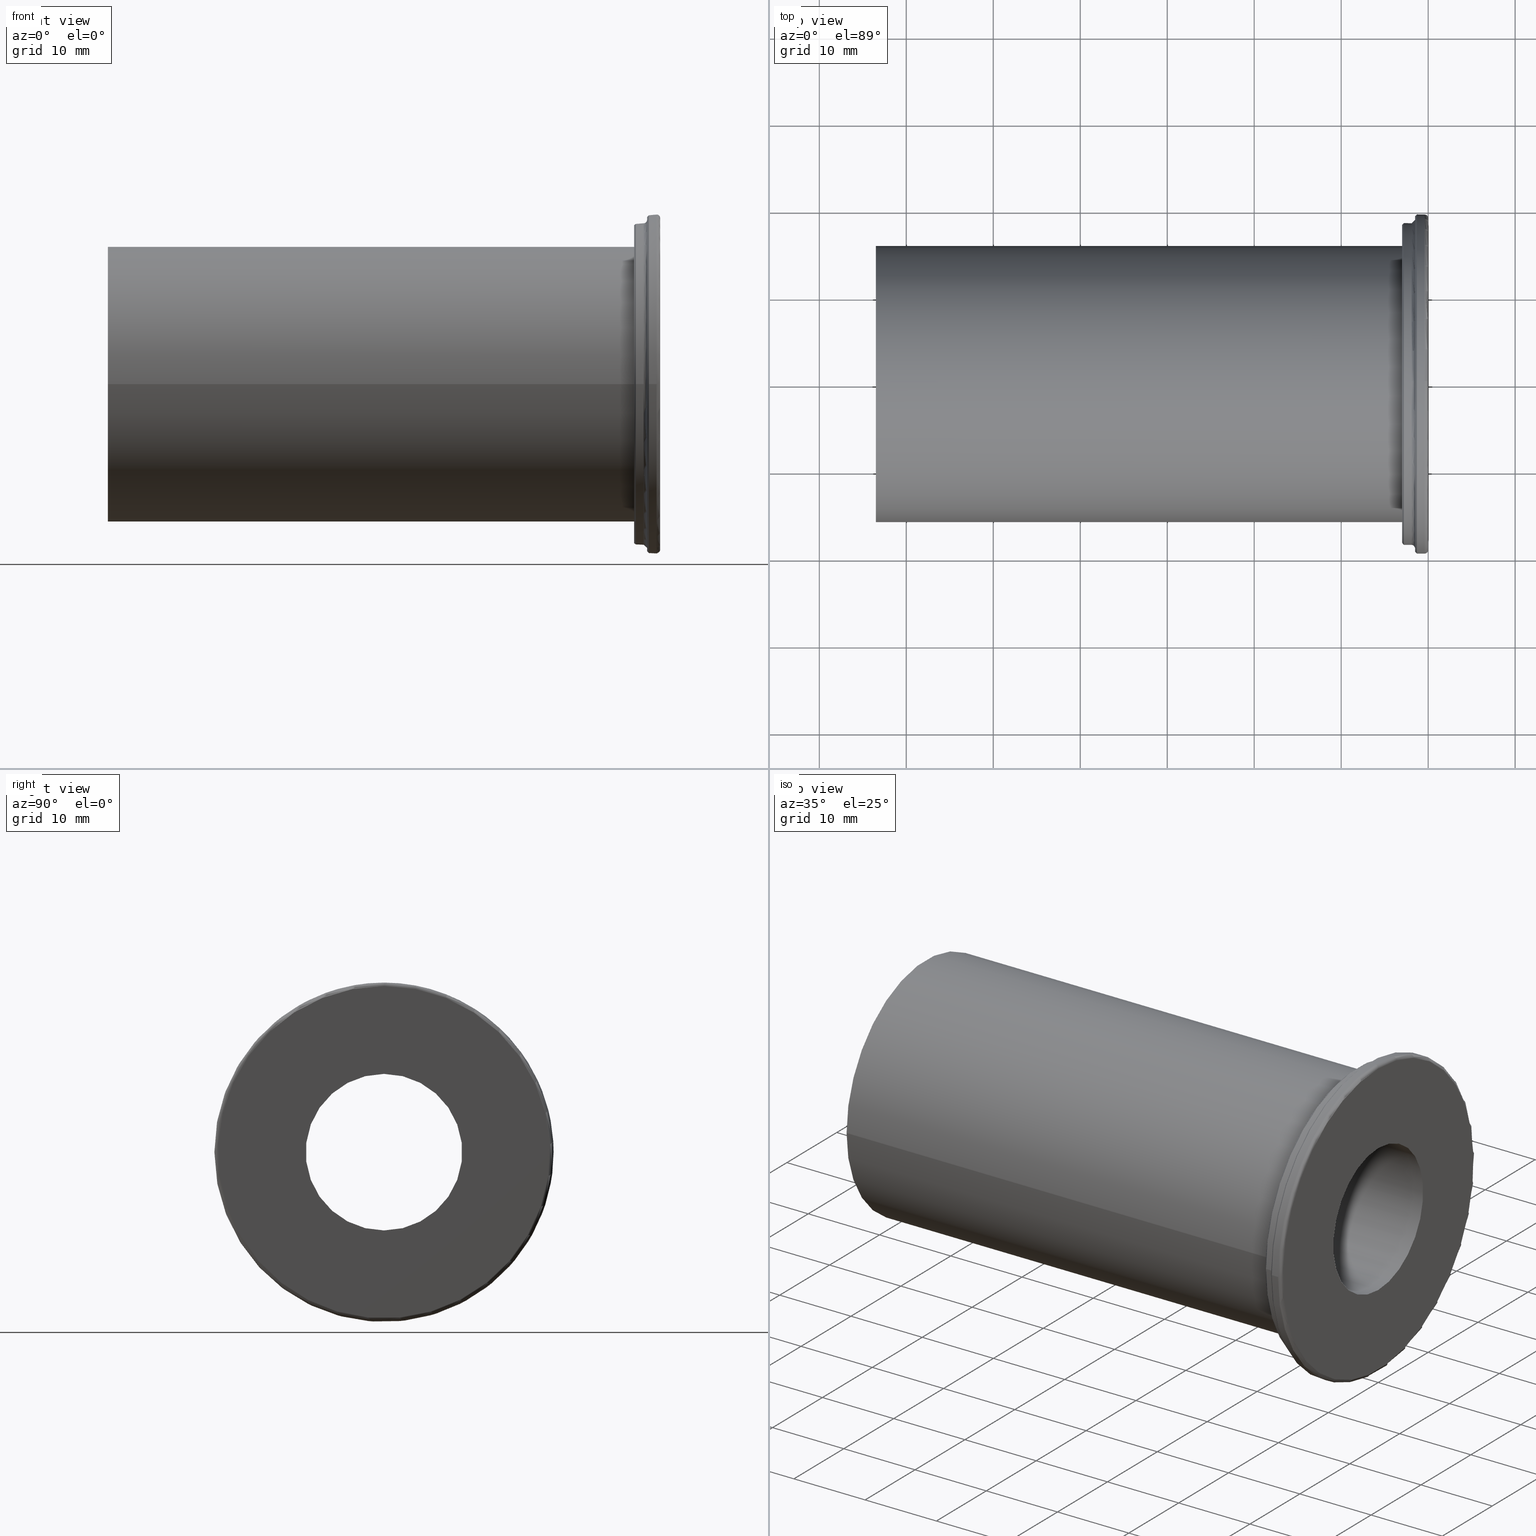
[diagram: canonical four-view strip — front | top / right | iso, engineering-drawing reading convention]
A machine part, canonical four-view strip (front | top / right | iso — engineering-drawing reading convention). The complete STEP part file that produces these views, byte-faithful:
ISO-10303-21;
HEADER;
/* Generated by software containing ST-Developer
 * from STEP Tools, Inc. (www.steptools.com) 
 */

FILE_DESCRIPTION(
/* description */ ('',
'CAx-IF Rec.Pracs.---Representation and Presentation of Product Manufa
cturing Information (PMI)---4.0---2014-10-13'),
/* implementation_level */ '2;1');

FILE_NAME(
/* name */ '103218.stp',
/* time_stamp */ '2025-05-12T15:29:28+09:00',
/* author */ ('eos'),
/* organization */ (''),
/* preprocessor_version */ 'ST-DEVELOPER v20',
/* originating_system */ 'Autodesk Inventor 2025',
/* authorisation */ '');

FILE_SCHEMA (('AP242_MANAGED_MODEL_BASED_3D_ENGINEERING_MIM_LF { 1 0 10303 442 1 1 4 }'));
ENDSEC;

DATA;
#10=CONSTRUCTIVE_GEOMETRY_REPRESENTATION_RELATIONSHIP('CGRR','None',#649,
#11);
#11=CONSTRUCTIVE_GEOMETRY_REPRESENTATION('Supplemental geometry',(#45,#46,
#47,#48),#641);
#12=MECHANICAL_DESIGN_AND_DRAUGHTING_RELATIONSHIP('\X2\B4F1AC01D22CC601\X0\',
'',#27,#28);
#13=MECHANICAL_DESIGN_AND_DRAUGHTING_RELATIONSHIP('\X2\C815BA74\X0\','',
#29,#28);
#14=MECHANICAL_DESIGN_AND_DRAUGHTING_RELATIONSHIP('\X2\D3C9BA74\X0\','',
#30,#28);
#15=MECHANICAL_DESIGN_AND_DRAUGHTING_RELATIONSHIP('\X2\C6B0CE21BA74\X0\',
'',#31,#28);
#16=MAPPED_ITEM('',#21,#396);
#17=MAPPED_ITEM('',#22,#397);
#18=MAPPED_ITEM('',#23,#398);
#19=MAPPED_ITEM('',#24,#399);
#20=MAPPED_ITEM('',#25,#400);
#21=REPRESENTATION_MAP(#396,#26);
#22=REPRESENTATION_MAP(#397,#649);
#23=REPRESENTATION_MAP(#398,#26);
#24=REPRESENTATION_MAP(#399,#26);
#25=REPRESENTATION_MAP(#400,#26);
#26=ADVANCED_BREP_SHAPE_REPRESENTATION('\X2\B4F1AC01D22CC601\X0\',(#84),
#641);
#27=DRAUGHTING_MODEL('\X2\B4F1AC01D22CC601\X0\',(#16,#33),#641);
#28=DRAUGHTING_MODEL('',(#17,#397),#641);
#29=DRAUGHTING_MODEL('\X2\C815BA74\X0\',(#18,#34),#641);
#30=DRAUGHTING_MODEL('\X2\D3C9BA74\X0\',(#19,#35),#641);
#31=DRAUGHTING_MODEL('\X2\C6B0CE21BA74\X0\',(#20,#36),#641);
#32=MECHANICAL_DESIGN_GEOMETRIC_PRESENTATION_REPRESENTATION('',(#59,#60,
#61,#62,#63,#64,#65,#66,#67,#68,#69,#70,#71,#72,#73,#74,#75,#76,#77,#78,
#79,#80,#81,#82),#642);
#33=CAMERA_MODEL_D3('\X2\B4F1AC01D22CC601\X0\',#388,#37);
#34=CAMERA_MODEL_D3('\X2\C815BA74\X0\',#390,#38);
#35=CAMERA_MODEL_D3('\X2\D3C9BA74\X0\',#392,#39);
#36=CAMERA_MODEL_D3('\X2\C6B0CE21BA74\X0\',#394,#40);
#37=VIEW_VOLUME(.PARALLEL.,#624,16.9875424688562,0.,.F.,0.,.F.,.F.,#41);
#38=VIEW_VOLUME(.PARALLEL.,#627,117.693146607172,0.,.F.,0.,.F.,.F.,#42);
#39=VIEW_VOLUME(.PARALLEL.,#630,117.693146607172,0.,.F.,0.,.F.,.F.,#43);
#40=VIEW_VOLUME(.PARALLEL.,#633,117.693146607172,0.,.F.,0.,.F.,.F.,#44);
#41=PLANAR_BOX('view window',27.8110236220472,20.,#389);
#42=PLANAR_BOX('view window',27.8110236220472,20.,#391);
#43=PLANAR_BOX('view window',27.8110236220472,20.,#393);
#44=PLANAR_BOX('view window',27.8110236220472,20.,#395);
#45=GEOMETRIC_CURVE_SET('\X2\C2A4CF00CE58\X0\1',(#50,#51,#52,#53,#54,#55,
#56,#57,#58,#612));
#46=GEOMETRIC_CURVE_SET('\X2\C2A4CF00CE58\X0\5',(#178,#614,#615));
#47=GEOMETRIC_CURVE_SET('\X2\C2A4CF00CE58\X0\6',(#179,#617,#618));
#48=GEOMETRIC_CURVE_SET('\X2\C2A4CF00CE58\X0\7',(#180,#620,#621));
#49=INVISIBILITY((#60,#61,#62,#63,#64,#65,#66,#67,#68,#69,#70,#71,#72,#73,
#74,#75,#76,#77,#78,#79,#80,#81,#82));
#50=POLYLINE('',(#594,#595));
#51=POLYLINE('',(#596,#597));
#52=POLYLINE('',(#598,#599));
#53=POLYLINE('',(#600,#601));
#54=POLYLINE('',(#602,#603));
#55=POLYLINE('',(#604,#605));
#56=POLYLINE('',(#606,#607));
#57=POLYLINE('',(#608,#609));
#58=POLYLINE('',(#610,#611));
#59=STYLED_ITEM('',(#658),#84);
#60=STYLED_ITEM('',(#659),#50);
#61=STYLED_ITEM('',(#659),#51);
#62=STYLED_ITEM('',(#660),#52);
#63=STYLED_ITEM('',(#659),#53);
#64=STYLED_ITEM('',(#659),#54);
#65=STYLED_ITEM('',(#659),#55);
#66=STYLED_ITEM('',(#659),#56);
#67=STYLED_ITEM('',(#659),#57);
#68=STYLED_ITEM('',(#659),#58);
#69=STYLED_ITEM('',(#661),#612);
#70=STYLED_ITEM('',(#660),#178);
#71=STYLED_ITEM('',(#662),#614);
#72=STYLED_ITEM('',(#663),#615);
#73=STYLED_ITEM('',(#660),#179);
#74=STYLED_ITEM('',(#664),#617);
#75=STYLED_ITEM('',(#665),#618);
#76=STYLED_ITEM('',(#660),#180);
#77=STYLED_ITEM('',(#666),#620);
#78=STYLED_ITEM('',(#667),#621);
#79=STYLED_ITEM('',(#668),#45);
#80=STYLED_ITEM('',(#669),#46);
#81=STYLED_ITEM('',(#670),#47);
#82=STYLED_ITEM('',(#671),#48);
#83=STYLED_ITEM('',(#672),#17);
#84=MANIFOLD_SOLID_BREP('\X2\C194B9ACB4DC\X0\1',#323);
#85=TOROIDAL_SURFACE('',#376,19.1,0.4);
#86=TOROIDAL_SURFACE('',#380,18.9,0.4);
#87=FACE_BOUND('',#123,.T.);
#88=FACE_BOUND('',#127,.T.);
#89=FACE_BOUND('',#130,.T.);
#90=FACE_BOUND('',#133,.T.);
#91=PLANE('',#365);
#92=PLANE('',#374);
#93=PLANE('',#379);
#94=PLANE('',#382);
#95=CONICAL_SURFACE('',#350,6.25,0.785398163397448);
#96=CONICAL_SURFACE('',#354,6.5,0.785398163397448);
#97=CONICAL_SURFACE('',#358,19.4,0.785398163397448);
#98=CONICAL_SURFACE('',#367,18.4,0.785398163397448);
#99=FACE_OUTER_BOUND('',#115,.T.);
#100=FACE_OUTER_BOUND('',#116,.T.);
#101=FACE_OUTER_BOUND('',#117,.T.);
#102=FACE_OUTER_BOUND('',#118,.T.);
#103=FACE_OUTER_BOUND('',#119,.T.);
#104=FACE_OUTER_BOUND('',#120,.T.);
#105=FACE_OUTER_BOUND('',#121,.T.);
#106=FACE_OUTER_BOUND('',#122,.T.);
#107=FACE_OUTER_BOUND('',#124,.T.);
#108=FACE_OUTER_BOUND('',#125,.T.);
#109=FACE_OUTER_BOUND('',#126,.T.);
#110=FACE_OUTER_BOUND('',#128,.T.);
#111=FACE_OUTER_BOUND('',#129,.T.);
#112=FACE_OUTER_BOUND('',#131,.T.);
#113=FACE_OUTER_BOUND('',#132,.T.);
#114=FACE_OUTER_BOUND('',#134,.T.);
#115=EDGE_LOOP('',(#235,#236,#237,#238,#239));
#116=EDGE_LOOP('',(#240,#241,#242,#243,#244));
#117=EDGE_LOOP('',(#245,#246,#247,#248));
#118=EDGE_LOOP('',(#249,#250,#251,#252));
#119=EDGE_LOOP('',(#253,#254,#255,#256));
#120=EDGE_LOOP('',(#257,#258,#259,#260,#261));
#121=EDGE_LOOP('',(#262,#263,#264,#265,#266,#267));
#122=EDGE_LOOP('',(#268));
#123=EDGE_LOOP('',(#269));
#124=EDGE_LOOP('',(#270,#271,#272,#273,#274));
#125=EDGE_LOOP('',(#275,#276,#277,#278,#279,#280));
#126=EDGE_LOOP('',(#281));
#127=EDGE_LOOP('',(#282));
#128=EDGE_LOOP('',(#283,#284,#285,#286,#287));
#129=EDGE_LOOP('',(#288));
#130=EDGE_LOOP('',(#289));
#131=EDGE_LOOP('',(#290,#291,#292,#293,#294));
#132=EDGE_LOOP('',(#295));
#133=EDGE_LOOP('',(#296));
#134=EDGE_LOOP('',(#297,#298,#299,#300));
#135=LINE('',#528,#145);
#136=LINE('',#535,#146);
#137=LINE('',#539,#147);
#138=LINE('',#543,#148);
#139=LINE('',#547,#149);
#140=LINE('',#554,#150);
#141=LINE('',#560,#151);
#142=LINE('',#571,#152);
#143=LINE('',#577,#153);
#144=LINE('',#593,#154);
#145=VECTOR('',#407,9.);
#146=VECTOR('',#416,6.25);
#147=VECTOR('',#421,12.5);
#148=VECTOR('',#426,6.5);
#149=VECTOR('',#431,13.);
#150=VECTOR('',#438,19.4);
#151=VECTOR('',#445,19.5);
#152=VECTOR('',#458,18.4);
#153=VECTOR('',#465,18.5);
#154=VECTOR('',#490,15.875);
#155=CIRCLE('',#347,9.);
#156=CIRCLE('',#348,9.);
#157=CIRCLE('',#349,9.);
#158=CIRCLE('',#351,12.5);
#159=CIRCLE('',#353,12.5);
#160=CIRCLE('',#355,13.);
#161=CIRCLE('',#357,13.);
#162=CIRCLE('',#359,19.5);
#163=CIRCLE('',#360,19.5);
#164=CIRCLE('',#361,19.3);
#165=CIRCLE('',#363,19.5);
#166=CIRCLE('',#364,19.5);
#167=CIRCLE('',#366,18.9);
#168=CIRCLE('',#368,18.5);
#169=CIRCLE('',#369,18.5);
#170=CIRCLE('',#370,18.3);
#171=CIRCLE('',#372,18.5);
#172=CIRCLE('',#373,18.5);
#173=CIRCLE('',#375,15.875);
#174=CIRCLE('',#377,19.1);
#175=CIRCLE('',#378,0.4);
#176=CIRCLE('',#381,0.4);
#177=CIRCLE('',#383,15.875);
#178=CIRCLE('',#385,15.875);
#179=CIRCLE('',#386,13.);
#180=CIRCLE('',#387,19.1);
#181=VERTEX_POINT('',#525);
#182=VERTEX_POINT('',#527);
#183=VERTEX_POINT('',#529);
#184=VERTEX_POINT('',#533);
#185=VERTEX_POINT('',#537);
#186=VERTEX_POINT('',#541);
#187=VERTEX_POINT('',#545);
#188=VERTEX_POINT('',#549);
#189=VERTEX_POINT('',#550);
#190=VERTEX_POINT('',#553);
#191=VERTEX_POINT('',#557);
#192=VERTEX_POINT('',#558);
#193=VERTEX_POINT('',#563);
#194=VERTEX_POINT('',#566);
#195=VERTEX_POINT('',#567);
#196=VERTEX_POINT('',#570);
#197=VERTEX_POINT('',#574);
#198=VERTEX_POINT('',#575);
#199=VERTEX_POINT('',#580);
#200=VERTEX_POINT('',#583);
#201=VERTEX_POINT('',#590);
#202=EDGE_CURVE('',#181,#181,#155,.T.);
#203=EDGE_CURVE('',#181,#182,#135,.T.);
#204=EDGE_CURVE('',#183,#182,#156,.T.);
#205=EDGE_CURVE('',#182,#183,#157,.T.);
#206=EDGE_CURVE('',#184,#184,#158,.T.);
#207=EDGE_CURVE('',#184,#183,#136,.T.);
#208=EDGE_CURVE('',#185,#185,#159,.T.);
#209=EDGE_CURVE('',#185,#184,#137,.T.);
#210=EDGE_CURVE('',#186,#186,#160,.T.);
#211=EDGE_CURVE('',#186,#185,#138,.T.);
#212=EDGE_CURVE('',#187,#187,#161,.T.);
#213=EDGE_CURVE('',#187,#186,#139,.T.);
#214=EDGE_CURVE('',#188,#189,#162,.T.);
#215=EDGE_CURVE('',#189,#188,#163,.T.);
#216=EDGE_CURVE('',#188,#190,#140,.T.);
#217=EDGE_CURVE('',#190,#190,#164,.T.);
#218=EDGE_CURVE('',#191,#192,#165,.T.);
#219=EDGE_CURVE('',#191,#189,#141,.T.);
#220=EDGE_CURVE('',#192,#191,#166,.T.);
#221=EDGE_CURVE('',#193,#193,#167,.T.);
#222=EDGE_CURVE('',#194,#195,#168,.T.);
#223=EDGE_CURVE('',#195,#194,#169,.T.);
#224=EDGE_CURVE('',#194,#196,#142,.T.);
#225=EDGE_CURVE('',#196,#196,#170,.T.);
#226=EDGE_CURVE('',#197,#198,#171,.T.);
#227=EDGE_CURVE('',#197,#195,#143,.T.);
#228=EDGE_CURVE('',#198,#197,#172,.T.);
#229=EDGE_CURVE('',#199,#199,#173,.T.);
#230=EDGE_CURVE('',#200,#200,#174,.T.);
#231=EDGE_CURVE('',#200,#192,#175,.T.);
#232=EDGE_CURVE('',#198,#193,#176,.T.);
#233=EDGE_CURVE('',#201,#201,#177,.T.);
#234=EDGE_CURVE('',#199,#201,#144,.T.);
#235=ORIENTED_EDGE('',*,*,#202,.F.);
#236=ORIENTED_EDGE('',*,*,#203,.T.);
#237=ORIENTED_EDGE('',*,*,#204,.F.);
#238=ORIENTED_EDGE('',*,*,#205,.F.);
#239=ORIENTED_EDGE('',*,*,#203,.F.);
#240=ORIENTED_EDGE('',*,*,#206,.T.);
#241=ORIENTED_EDGE('',*,*,#207,.T.);
#242=ORIENTED_EDGE('',*,*,#204,.T.);
#243=ORIENTED_EDGE('',*,*,#205,.T.);
#244=ORIENTED_EDGE('',*,*,#207,.F.);
#245=ORIENTED_EDGE('',*,*,#208,.F.);
#246=ORIENTED_EDGE('',*,*,#209,.T.);
#247=ORIENTED_EDGE('',*,*,#206,.F.);
#248=ORIENTED_EDGE('',*,*,#209,.F.);
#249=ORIENTED_EDGE('',*,*,#210,.T.);
#250=ORIENTED_EDGE('',*,*,#211,.T.);
#251=ORIENTED_EDGE('',*,*,#208,.T.);
#252=ORIENTED_EDGE('',*,*,#211,.F.);
#253=ORIENTED_EDGE('',*,*,#212,.F.);
#254=ORIENTED_EDGE('',*,*,#213,.T.);
#255=ORIENTED_EDGE('',*,*,#210,.F.);
#256=ORIENTED_EDGE('',*,*,#213,.F.);
#257=ORIENTED_EDGE('',*,*,#214,.T.);
#258=ORIENTED_EDGE('',*,*,#215,.T.);
#259=ORIENTED_EDGE('',*,*,#216,.T.);
#260=ORIENTED_EDGE('',*,*,#217,.T.);
#261=ORIENTED_EDGE('',*,*,#216,.F.);
#262=ORIENTED_EDGE('',*,*,#218,.F.);
#263=ORIENTED_EDGE('',*,*,#219,.T.);
#264=ORIENTED_EDGE('',*,*,#214,.F.);
#265=ORIENTED_EDGE('',*,*,#215,.F.);
#266=ORIENTED_EDGE('',*,*,#219,.F.);
#267=ORIENTED_EDGE('',*,*,#220,.F.);
#268=ORIENTED_EDGE('',*,*,#217,.F.);
#269=ORIENTED_EDGE('',*,*,#221,.F.);
#270=ORIENTED_EDGE('',*,*,#222,.T.);
#271=ORIENTED_EDGE('',*,*,#223,.T.);
#272=ORIENTED_EDGE('',*,*,#224,.T.);
#273=ORIENTED_EDGE('',*,*,#225,.T.);
#274=ORIENTED_EDGE('',*,*,#224,.F.);
#275=ORIENTED_EDGE('',*,*,#226,.F.);
#276=ORIENTED_EDGE('',*,*,#227,.T.);
#277=ORIENTED_EDGE('',*,*,#222,.F.);
#278=ORIENTED_EDGE('',*,*,#223,.F.);
#279=ORIENTED_EDGE('',*,*,#227,.F.);
#280=ORIENTED_EDGE('',*,*,#228,.F.);
#281=ORIENTED_EDGE('',*,*,#225,.F.);
#282=ORIENTED_EDGE('',*,*,#229,.T.);
#283=ORIENTED_EDGE('',*,*,#230,.T.);
#284=ORIENTED_EDGE('',*,*,#231,.T.);
#285=ORIENTED_EDGE('',*,*,#220,.T.);
#286=ORIENTED_EDGE('',*,*,#218,.T.);
#287=ORIENTED_EDGE('',*,*,#231,.F.);
#288=ORIENTED_EDGE('',*,*,#230,.F.);
#289=ORIENTED_EDGE('',*,*,#202,.T.);
#290=ORIENTED_EDGE('',*,*,#226,.T.);
#291=ORIENTED_EDGE('',*,*,#232,.T.);
#292=ORIENTED_EDGE('',*,*,#221,.T.);
#293=ORIENTED_EDGE('',*,*,#232,.F.);
#294=ORIENTED_EDGE('',*,*,#228,.T.);
#295=ORIENTED_EDGE('',*,*,#233,.F.);
#296=ORIENTED_EDGE('',*,*,#212,.T.);
#297=ORIENTED_EDGE('',*,*,#229,.F.);
#298=ORIENTED_EDGE('',*,*,#234,.T.);
#299=ORIENTED_EDGE('',*,*,#233,.T.);
#300=ORIENTED_EDGE('',*,*,#234,.F.);
#301=CYLINDRICAL_SURFACE('',#346,9.);
#302=CYLINDRICAL_SURFACE('',#352,12.5);
#303=CYLINDRICAL_SURFACE('',#356,13.);
#304=CYLINDRICAL_SURFACE('',#362,19.5);
#305=CYLINDRICAL_SURFACE('',#371,18.5);
#306=CYLINDRICAL_SURFACE('',#384,15.875);
#307=ADVANCED_FACE('',(#99),#301,.F.);
#308=ADVANCED_FACE('',(#100),#95,.F.);
#309=ADVANCED_FACE('',(#101),#302,.F.);
#310=ADVANCED_FACE('',(#102),#96,.F.);
#311=ADVANCED_FACE('',(#103),#303,.F.);
#312=ADVANCED_FACE('',(#104),#97,.T.);
#313=ADVANCED_FACE('',(#105),#304,.T.);
#314=ADVANCED_FACE('',(#106,#87),#91,.T.);
#315=ADVANCED_FACE('',(#107),#98,.T.);
#316=ADVANCED_FACE('',(#108),#305,.T.);
#317=ADVANCED_FACE('',(#109,#88),#92,.T.);
#318=ADVANCED_FACE('',(#110),#85,.T.);
#319=ADVANCED_FACE('',(#111,#89),#93,.T.);
#320=ADVANCED_FACE('',(#112),#86,.F.);
#321=ADVANCED_FACE('',(#113,#90),#94,.T.);
#322=ADVANCED_FACE('',(#114),#306,.T.);
#323=CLOSED_SHELL('',(#307,#308,#309,#310,#311,#312,#313,#314,#315,#316,
#317,#318,#319,#320,#321,#322));
#324=DERIVED_UNIT_ELEMENT(#327,1.);
#325=DERIVED_UNIT_ELEMENT(#644,-3.);
#326=DIMENSIONAL_EXPONENTS(0.,1.,0.,0.,0.,0.,0.);
#327=(
CONVERSION_BASED_UNIT('gram',#329)
MASS_UNIT()
NAMED_UNIT(#326)
);
#328=(
MASS_UNIT()
NAMED_UNIT(*)
SI_UNIT(.KILO.,.GRAM.)
);
#329=MASS_MEASURE_WITH_UNIT(MASS_MEASURE(0.001),#328);
#330=DERIVED_UNIT((#324,#325));
#331=MEASURE_REPRESENTATION_ITEM('density measure',
POSITIVE_RATIO_MEASURE(7.85),#330);
#332=PROPERTY_DEFINITION_REPRESENTATION(#337,#334);
#333=PROPERTY_DEFINITION_REPRESENTATION(#338,#335);
#334=REPRESENTATION('material name',(#336),#641);
#335=REPRESENTATION('density',(#331),#641);
#336=DESCRIPTIVE_REPRESENTATION_ITEM('SUJ2','SUJ2');
#337=PROPERTY_DEFINITION('material property','material name',#651);
#338=PROPERTY_DEFINITION('material property','density of part',#651);
#339=DATE_TIME_ROLE('creation_date');
#340=APPLIED_DATE_AND_TIME_ASSIGNMENT(#341,#339,(#651));
#341=DATE_AND_TIME(#342,#343);
#342=CALENDAR_DATE(2020,6,7);
#343=LOCAL_TIME(0,0,0.,#344);
#344=COORDINATED_UNIVERSAL_TIME_OFFSET(0,0,.BEHIND.);
#345=AXIS2_PLACEMENT_3D('',#523,#401,#402);
#346=AXIS2_PLACEMENT_3D('',#524,#403,#404);
#347=AXIS2_PLACEMENT_3D('',#526,#405,#406);
#348=AXIS2_PLACEMENT_3D('',#530,#408,#409);
#349=AXIS2_PLACEMENT_3D('',#531,#410,#411);
#350=AXIS2_PLACEMENT_3D('',#532,#412,#413);
#351=AXIS2_PLACEMENT_3D('',#534,#414,#415);
#352=AXIS2_PLACEMENT_3D('',#536,#417,#418);
#353=AXIS2_PLACEMENT_3D('',#538,#419,#420);
#354=AXIS2_PLACEMENT_3D('',#540,#422,#423);
#355=AXIS2_PLACEMENT_3D('',#542,#424,#425);
#356=AXIS2_PLACEMENT_3D('',#544,#427,#428);
#357=AXIS2_PLACEMENT_3D('',#546,#429,#430);
#358=AXIS2_PLACEMENT_3D('',#548,#432,#433);
#359=AXIS2_PLACEMENT_3D('',#551,#434,#435);
#360=AXIS2_PLACEMENT_3D('',#552,#436,#437);
#361=AXIS2_PLACEMENT_3D('',#555,#439,#440);
#362=AXIS2_PLACEMENT_3D('',#556,#441,#442);
#363=AXIS2_PLACEMENT_3D('',#559,#443,#444);
#364=AXIS2_PLACEMENT_3D('',#561,#446,#447);
#365=AXIS2_PLACEMENT_3D('',#562,#448,#449);
#366=AXIS2_PLACEMENT_3D('',#564,#450,#451);
#367=AXIS2_PLACEMENT_3D('',#565,#452,#453);
#368=AXIS2_PLACEMENT_3D('',#568,#454,#455);
#369=AXIS2_PLACEMENT_3D('',#569,#456,#457);
#370=AXIS2_PLACEMENT_3D('',#572,#459,#460);
#371=AXIS2_PLACEMENT_3D('',#573,#461,#462);
#372=AXIS2_PLACEMENT_3D('',#576,#463,#464);
#373=AXIS2_PLACEMENT_3D('',#578,#466,#467);
#374=AXIS2_PLACEMENT_3D('',#579,#468,#469);
#375=AXIS2_PLACEMENT_3D('',#581,#470,#471);
#376=AXIS2_PLACEMENT_3D('',#582,#472,#473);
#377=AXIS2_PLACEMENT_3D('',#584,#474,#475);
#378=AXIS2_PLACEMENT_3D('',#585,#476,#477);
#379=AXIS2_PLACEMENT_3D('',#586,#478,#479);
#380=AXIS2_PLACEMENT_3D('',#587,#480,#481);
#381=AXIS2_PLACEMENT_3D('',#588,#482,#483);
#382=AXIS2_PLACEMENT_3D('',#589,#484,#485);
#383=AXIS2_PLACEMENT_3D('',#591,#486,#487);
#384=AXIS2_PLACEMENT_3D('',#592,#488,#489);
#385=AXIS2_PLACEMENT_3D('',#613,#491,#492);
#386=AXIS2_PLACEMENT_3D('',#616,#493,#494);
#387=AXIS2_PLACEMENT_3D('',#619,#495,#496);
#388=AXIS2_PLACEMENT_3D('view reference',#622,#497,#498);
#389=AXIS2_PLACEMENT_3D('view window',#623,#499,#500);
#390=AXIS2_PLACEMENT_3D('view reference',#625,#501,#502);
#391=AXIS2_PLACEMENT_3D('view window',#626,#503,#504);
#392=AXIS2_PLACEMENT_3D('view reference',#628,#505,#506);
#393=AXIS2_PLACEMENT_3D('view window',#629,#507,#508);
#394=AXIS2_PLACEMENT_3D('view reference',#631,#509,#510);
#395=AXIS2_PLACEMENT_3D('view window',#632,#511,#512);
#396=AXIS2_PLACEMENT_3D('',#634,#513,#514);
#397=AXIS2_PLACEMENT_3D('',#635,#515,#516);
#398=AXIS2_PLACEMENT_3D('',#636,#517,#518);
#399=AXIS2_PLACEMENT_3D('',#637,#519,#520);
#400=AXIS2_PLACEMENT_3D('',#638,#521,#522);
#401=DIRECTION('axis',(0.,0.,1.));
#402=DIRECTION('refdir',(1.,0.,0.));
#403=DIRECTION('center_axis',(1.,0.,0.));
#404=DIRECTION('ref_axis',(0.,0.,-1.));
#405=DIRECTION('center_axis',(-1.,0.,0.));
#406=DIRECTION('ref_axis',(0.,0.,-1.));
#407=DIRECTION('',(-1.,0.,0.));
#408=DIRECTION('center_axis',(1.,0.,0.));
#409=DIRECTION('ref_axis',(0.,0.,-1.));
#410=DIRECTION('center_axis',(1.,0.,0.));
#411=DIRECTION('ref_axis',(0.,0.,-1.));
#412=DIRECTION('center_axis',(-1.,0.,0.));
#413=DIRECTION('ref_axis',(0.,0.,1.));
#414=DIRECTION('center_axis',(-1.,0.,0.));
#415=DIRECTION('ref_axis',(0.,0.,1.));
#416=DIRECTION('',(0.707106781186548,8.65956056235494E-17,0.707106781186547));
#417=DIRECTION('center_axis',(-1.,0.,0.));
#418=DIRECTION('ref_axis',(0.,0.,1.));
#419=DIRECTION('center_axis',(1.,0.,0.));
#420=DIRECTION('ref_axis',(0.,0.,1.));
#421=DIRECTION('',(1.,0.,0.));
#422=DIRECTION('center_axis',(-1.,0.,0.));
#423=DIRECTION('ref_axis',(0.,0.,1.));
#424=DIRECTION('center_axis',(-1.,0.,0.));
#425=DIRECTION('ref_axis',(0.,0.,1.));
#426=DIRECTION('',(0.707106781186548,8.65956056235493E-17,0.707106781186547));
#427=DIRECTION('center_axis',(-1.,0.,0.));
#428=DIRECTION('ref_axis',(0.,0.,1.));
#429=DIRECTION('center_axis',(1.,0.,0.));
#430=DIRECTION('ref_axis',(0.,0.,1.));
#431=DIRECTION('',(1.,0.,0.));
#432=DIRECTION('center_axis',(1.,0.,0.));
#433=DIRECTION('ref_axis',(0.,-1.,0.));
#434=DIRECTION('center_axis',(-1.,0.,0.));
#435=DIRECTION('ref_axis',(0.,-1.,0.));
#436=DIRECTION('center_axis',(-1.,0.,0.));
#437=DIRECTION('ref_axis',(0.,-1.,0.));
#438=DIRECTION('',(-0.707106781186548,-0.707106781186548,-8.65956056235493E-17));
#439=DIRECTION('center_axis',(1.,0.,0.));
#440=DIRECTION('ref_axis',(0.,-1.,0.));
#441=DIRECTION('center_axis',(1.,0.,0.));
#442=DIRECTION('ref_axis',(0.,1.,0.));
#443=DIRECTION('center_axis',(1.,0.,0.));
#444=DIRECTION('ref_axis',(0.,-1.,1.83697019872103E-16));
#445=DIRECTION('',(-1.,0.,0.));
#446=DIRECTION('center_axis',(1.,0.,0.));
#447=DIRECTION('ref_axis',(0.,-1.,1.83697019872103E-16));
#448=DIRECTION('center_axis',(-1.,0.,0.));
#449=DIRECTION('ref_axis',(0.,0.,1.));
#450=DIRECTION('center_axis',(-1.,0.,0.));
#451=DIRECTION('ref_axis',(0.,-1.,1.83697019872103E-16));
#452=DIRECTION('center_axis',(1.,0.,0.));
#453=DIRECTION('ref_axis',(0.,-1.,0.));
#454=DIRECTION('center_axis',(-1.,0.,0.));
#455=DIRECTION('ref_axis',(0.,-1.,0.));
#456=DIRECTION('center_axis',(-1.,0.,0.));
#457=DIRECTION('ref_axis',(0.,-1.,0.));
#458=DIRECTION('',(-0.707106781186547,-0.707106781186547,-8.65956056235493E-17));
#459=DIRECTION('center_axis',(1.,0.,0.));
#460=DIRECTION('ref_axis',(0.,-1.,0.));
#461=DIRECTION('center_axis',(1.,0.,0.));
#462=DIRECTION('ref_axis',(0.,1.,0.));
#463=DIRECTION('center_axis',(1.,0.,0.));
#464=DIRECTION('ref_axis',(0.,-1.,1.83697019872103E-16));
#465=DIRECTION('',(-1.,0.,0.));
#466=DIRECTION('center_axis',(1.,0.,0.));
#467=DIRECTION('ref_axis',(0.,-1.,1.83697019872103E-16));
#468=DIRECTION('center_axis',(-1.,0.,0.));
#469=DIRECTION('ref_axis',(0.,0.,1.));
#470=DIRECTION('center_axis',(1.,0.,0.));
#471=DIRECTION('ref_axis',(0.,0.,-1.));
#472=DIRECTION('center_axis',(1.,0.,0.));
#473=DIRECTION('ref_axis',(0.,0.,-1.));
#474=DIRECTION('center_axis',(-1.,0.,0.));
#475=DIRECTION('ref_axis',(0.,-1.,1.83697019872103E-16));
#476=DIRECTION('center_axis',(0.,-1.,-1.22464679914735E-16));
#477=DIRECTION('ref_axis',(0.,-1.22464679914735E-16,1.));
#478=DIRECTION('center_axis',(1.,0.,0.));
#479=DIRECTION('ref_axis',(0.,0.,-1.));
#480=DIRECTION('center_axis',(1.,0.,0.));
#481=DIRECTION('ref_axis',(0.,0.,-1.));
#482=DIRECTION('center_axis',(0.,-1.,-1.22464679914735E-16));
#483=DIRECTION('ref_axis',(0.,-1.22464679914735E-16,1.));
#484=DIRECTION('center_axis',(-1.,0.,0.));
#485=DIRECTION('ref_axis',(0.,0.,1.));
#486=DIRECTION('center_axis',(1.,0.,0.));
#487=DIRECTION('ref_axis',(0.,0.,-1.));
#488=DIRECTION('center_axis',(1.,0.,0.));
#489=DIRECTION('ref_axis',(0.,1.,0.));
#490=DIRECTION('',(-1.,0.,0.));
#491=DIRECTION('center_axis',(-1.,0.,0.));
#492=DIRECTION('ref_axis',(0.,0.,1.));
#493=DIRECTION('center_axis',(-1.,0.,0.));
#494=DIRECTION('ref_axis',(0.,0.,1.));
#495=DIRECTION('center_axis',(1.,0.,0.));
#496=DIRECTION('ref_axis',(0.,0.,-1.));
#497=DIRECTION('center_axis',(-0.577350269189626,0.577350269189626,-0.577350269189626));
#498=DIRECTION('ref_axis',(-0.707106781186548,-0.707106781186548,0.));
#499=DIRECTION('center_axis',(0.,0.,1.));
#500=DIRECTION('ref_axis',(1.,0.,0.));
#501=DIRECTION('center_axis',(-2.22044604925031E-16,0.,-1.));
#502=DIRECTION('ref_axis',(-1.,0.,2.22044604925031E-16));
#503=DIRECTION('center_axis',(0.,0.,1.));
#504=DIRECTION('ref_axis',(1.,0.,0.));
#505=DIRECTION('center_axis',(0.,-1.,0.));
#506=DIRECTION('ref_axis',(-1.,0.,0.));
#507=DIRECTION('center_axis',(0.,0.,1.));
#508=DIRECTION('ref_axis',(1.,0.,0.));
#509=DIRECTION('center_axis',(-1.,0.,0.));
#510=DIRECTION('ref_axis',(0.,0.,1.));
#511=DIRECTION('center_axis',(0.,0.,1.));
#512=DIRECTION('ref_axis',(1.,0.,0.));
#513=DIRECTION('center_axis',(0.,0.,1.));
#514=DIRECTION('ref_axis',(1.,0.,0.));
#515=DIRECTION('center_axis',(0.,0.,1.));
#516=DIRECTION('ref_axis',(1.,0.,0.));
#517=DIRECTION('center_axis',(0.,0.,1.));
#518=DIRECTION('ref_axis',(1.,0.,0.));
#519=DIRECTION('center_axis',(0.,0.,1.));
#520=DIRECTION('ref_axis',(1.,0.,0.));
#521=DIRECTION('center_axis',(0.,0.,1.));
#522=DIRECTION('ref_axis',(1.,0.,0.));
#523=CARTESIAN_POINT('',(0.,0.,0.));
#524=CARTESIAN_POINT('Origin',(-84.1085608009078,0.,0.));
#525=CARTESIAN_POINT('',(0.,-1.10218211923262E-15,9.));
#526=CARTESIAN_POINT('Origin',(0.,0.,0.));
#527=CARTESIAN_POINT('',(-39.5,-1.10218211923262E-15,9.));
#528=CARTESIAN_POINT('',(-84.1085608009078,-1.10218211923262E-15,9.));
#529=CARTESIAN_POINT('',(-39.5,-1.10218211923262E-15,-9.));
#530=CARTESIAN_POINT('Origin',(-39.5,0.,0.));
#531=CARTESIAN_POINT('Origin',(-39.5,0.,0.));
#532=CARTESIAN_POINT('Origin',(-36.75,0.,0.));
#533=CARTESIAN_POINT('',(-43.,-1.53080849893419E-15,-12.5));
#534=CARTESIAN_POINT('Origin',(-43.,0.,0.));
#535=CARTESIAN_POINT('',(-36.75,-7.65404249467096E-16,-6.25));
#536=CARTESIAN_POINT('Origin',(-53.25,0.,0.));
#537=CARTESIAN_POINT('',(-47.,1.53080849893419E-15,-12.5));
#538=CARTESIAN_POINT('Origin',(-47.,0.,0.));
#539=CARTESIAN_POINT('',(-53.25,-1.53080849893419E-15,-12.5));
#540=CARTESIAN_POINT('Origin',(-41.,0.,0.));
#541=CARTESIAN_POINT('',(-47.5,-1.59204083889156E-15,-13.));
#542=CARTESIAN_POINT('Origin',(-47.5,0.,0.));
#543=CARTESIAN_POINT('',(-41.,-7.9602041944578E-16,-6.5));
#544=CARTESIAN_POINT('Origin',(-55.5,0.,0.));
#545=CARTESIAN_POINT('',(-63.5,-1.59204083889156E-15,-13.));
#546=CARTESIAN_POINT('Origin',(-63.5,0.,0.));
#547=CARTESIAN_POINT('',(-55.5,-1.59204083889156E-15,-13.));
#548=CARTESIAN_POINT('Origin',(-1.4,0.,0.));
#549=CARTESIAN_POINT('',(-1.3,19.5,-2.38806125833734E-15));
#550=CARTESIAN_POINT('',(-1.3,-19.5,-2.38806125833734E-15));
#551=CARTESIAN_POINT('Origin',(-1.3,0.,0.));
#552=CARTESIAN_POINT('Origin',(-1.3,0.,0.));
#553=CARTESIAN_POINT('',(-1.5,19.3,2.36356832235439E-15));
#554=CARTESIAN_POINT('',(-1.4,19.4,2.37581479034587E-15));
#555=CARTESIAN_POINT('Origin',(-1.5,0.,0.));
#556=CARTESIAN_POINT('Origin',(-0.75,0.,0.));
#557=CARTESIAN_POINT('',(-0.399999999999996,-19.5,-2.38806125833734E-15));
#558=CARTESIAN_POINT('',(-0.399999999999996,-2.38806125833734E-15,19.5));
#559=CARTESIAN_POINT('Origin',(-0.399999999999996,0.,0.));
#560=CARTESIAN_POINT('',(-0.75,-19.5,-2.38806125833734E-15));
#561=CARTESIAN_POINT('Origin',(-0.399999999999996,0.,0.));
#562=CARTESIAN_POINT('Origin',(-1.5,19.5,0.));
#563=CARTESIAN_POINT('',(-1.5,-2.3145824503885E-15,18.9));
#564=CARTESIAN_POINT('Origin',(-1.5,0.,0.));
#565=CARTESIAN_POINT('Origin',(-2.9,0.,0.));
#566=CARTESIAN_POINT('',(-2.8,18.5,-2.2655965784226E-15));
#567=CARTESIAN_POINT('',(-2.8,-18.5,-2.2655965784226E-15));
#568=CARTESIAN_POINT('Origin',(-2.8,0.,0.));
#569=CARTESIAN_POINT('Origin',(-2.8,0.,0.));
#570=CARTESIAN_POINT('',(-3.,18.3,2.24110364243966E-15));
#571=CARTESIAN_POINT('',(-2.9,18.4,2.25335011043113E-15));
#572=CARTESIAN_POINT('Origin',(-3.,0.,0.));
#573=CARTESIAN_POINT('Origin',(-2.25,0.,0.));
#574=CARTESIAN_POINT('',(-1.9,-18.5,-2.2655965784226E-15));
#575=CARTESIAN_POINT('',(-1.9,-2.2655965784226E-15,18.5));
#576=CARTESIAN_POINT('Origin',(-1.9,0.,0.));
#577=CARTESIAN_POINT('',(-2.25,-18.5,-2.2655965784226E-15));
#578=CARTESIAN_POINT('Origin',(-1.9,0.,0.));
#579=CARTESIAN_POINT('Origin',(-3.,18.5,0.));
#580=CARTESIAN_POINT('',(-2.99999999999997,-15.875,-1.94412679364642E-15));
#581=CARTESIAN_POINT('Origin',(-2.99999999999997,0.,0.));
#582=CARTESIAN_POINT('Origin',(-0.399999999999996,0.,0.));
#583=CARTESIAN_POINT('',(4.44089209850063E-15,-2.33907538637144E-15,19.1));
#584=CARTESIAN_POINT('Origin',(4.44089209850063E-15,0.,0.));
#585=CARTESIAN_POINT('Origin',(-0.399999999999996,-2.33907538637144E-15,
19.1));
#586=CARTESIAN_POINT('Origin',(4.44089209850063E-15,0.,0.));
#587=CARTESIAN_POINT('Origin',(-1.9,0.,0.));
#588=CARTESIAN_POINT('Origin',(-1.9,-2.3145824503885E-15,18.9));
#589=CARTESIAN_POINT('Origin',(-63.5,15.875,0.));
#590=CARTESIAN_POINT('',(-63.5,-15.875,-1.94412679364642E-15));
#591=CARTESIAN_POINT('Origin',(-63.5,0.,0.));
#592=CARTESIAN_POINT('Origin',(-33.25,0.,0.));
#593=CARTESIAN_POINT('',(-33.25,-15.875,-1.94412679364642E-15));
#594=CARTESIAN_POINT('polyline point',(-63.5,0.,0.));
#595=CARTESIAN_POINT('polyline point',(-63.5,15.875,0.));
#596=CARTESIAN_POINT('polyline point',(-63.5,15.875,0.));
#597=CARTESIAN_POINT('polyline point',(-2.99999999999997,15.875,0.));
#598=CARTESIAN_POINT('polyline point',(0.,-3.9,0.));
#599=CARTESIAN_POINT('polyline point',(0.,23.4,0.));
#600=CARTESIAN_POINT('polyline point',(4.44089209850063E-15,0.,0.));
#601=CARTESIAN_POINT('polyline point',(0.,19.5,0.));
#602=CARTESIAN_POINT('polyline point',(0.,19.5,0.));
#603=CARTESIAN_POINT('polyline point',(-1.5,19.5,0.));
#604=CARTESIAN_POINT('polyline point',(-1.5,19.5,0.));
#605=CARTESIAN_POINT('polyline point',(-1.5,18.5,0.));
#606=CARTESIAN_POINT('polyline point',(-1.5,18.5,0.));
#607=CARTESIAN_POINT('polyline point',(-3.,18.5,0.));
#608=CARTESIAN_POINT('polyline point',(-3.,18.5,0.));
#609=CARTESIAN_POINT('polyline point',(-2.99999999999997,15.875,0.));
#610=CARTESIAN_POINT('polyline point',(-63.5,0.,0.));
#611=CARTESIAN_POINT('polyline point',(4.44089209850063E-15,0.,0.));
#612=CARTESIAN_POINT('',(0.,19.5,0.));
#613=CARTESIAN_POINT('Origin',(-63.5,0.,0.));
#614=CARTESIAN_POINT('',(-63.5,0.,0.));
#615=CARTESIAN_POINT('',(-63.5,0.,0.));
#616=CARTESIAN_POINT('Origin',(-63.5,0.,0.));
#617=CARTESIAN_POINT('',(-63.5,0.,0.));
#618=CARTESIAN_POINT('',(-63.5,0.,0.));
#619=CARTESIAN_POINT('Origin',(4.44089209850063E-15,0.,0.));
#620=CARTESIAN_POINT('',(4.44089209850063E-15,0.,0.));
#621=CARTESIAN_POINT('',(4.44089209850063E-15,0.,0.));
#622=CARTESIAN_POINT('Origin',(9.80776221726431,-9.80776221726431,9.80776221726431));
#623=CARTESIAN_POINT('Origin',(-13.9055118110236,-10.,16.9875424688562));
#624=CARTESIAN_POINT('',(0.,0.,0.));
#625=CARTESIAN_POINT('Origin',(2.61331282407732E-14,0.,117.693146607172));
#626=CARTESIAN_POINT('Origin',(-13.9055118110236,-10.,117.693146607172));
#627=CARTESIAN_POINT('',(0.,0.,0.));
#628=CARTESIAN_POINT('Origin',(0.,117.693146607172,0.));
#629=CARTESIAN_POINT('Origin',(-13.9055118110236,-10.,117.693146607172));
#630=CARTESIAN_POINT('',(0.,0.,0.));
#631=CARTESIAN_POINT('Origin',(117.693146607172,0.,0.));
#632=CARTESIAN_POINT('Origin',(-13.9055118110236,-10.,117.693146607172));
#633=CARTESIAN_POINT('',(0.,0.,0.));
#634=CARTESIAN_POINT('Origin',(0.,0.,0.));
#635=CARTESIAN_POINT('Origin',(0.,0.,0.));
#636=CARTESIAN_POINT('Origin',(0.,0.,0.));
#637=CARTESIAN_POINT('Origin',(0.,0.,0.));
#638=CARTESIAN_POINT('Origin',(0.,0.,0.));
#639=UNCERTAINTY_MEASURE_WITH_UNIT(LENGTH_MEASURE(0.01),#643,
'DISTANCE_ACCURACY_VALUE',
'Maximum model space distance between geometric entities at asserted c
onnectivities');
#640=UNCERTAINTY_MEASURE_WITH_UNIT(LENGTH_MEASURE(0.01),#643,
'DISTANCE_ACCURACY_VALUE',
'Maximum model space distance between geometric entities at asserted c
onnectivities');
#641=(
GEOMETRIC_REPRESENTATION_CONTEXT(3)
GLOBAL_UNCERTAINTY_ASSIGNED_CONTEXT((#639))
GLOBAL_UNIT_ASSIGNED_CONTEXT((#643,#645,#646))
REPRESENTATION_CONTEXT('','3D')
);
#642=(
GEOMETRIC_REPRESENTATION_CONTEXT(3)
GLOBAL_UNCERTAINTY_ASSIGNED_CONTEXT((#640))
GLOBAL_UNIT_ASSIGNED_CONTEXT((#643,#645,#646))
REPRESENTATION_CONTEXT('','3D')
);
#643=(
LENGTH_UNIT()
NAMED_UNIT(*)
SI_UNIT(.MILLI.,.METRE.)
);
#644=(
LENGTH_UNIT()
NAMED_UNIT(*)
SI_UNIT(.CENTI.,.METRE.)
);
#645=(
NAMED_UNIT(*)
PLANE_ANGLE_UNIT()
SI_UNIT($,.RADIAN.)
);
#646=(
NAMED_UNIT(*)
SI_UNIT($,.STERADIAN.)
SOLID_ANGLE_UNIT()
);
#647=SHAPE_DEFINITION_REPRESENTATION(#648,#649);
#648=PRODUCT_DEFINITION_SHAPE('',$,#651);
#649=SHAPE_REPRESENTATION('',(#345,#84),#641);
#650=PRODUCT_DEFINITION_CONTEXT('part definition',#655,'design');
#651=PRODUCT_DEFINITION('HK25.4-12-SSK','LO-HK31.75-18',#652,#650);
#652=PRODUCT_DEFINITION_FORMATION('',$,#657);
#653=PRODUCT_RELATED_PRODUCT_CATEGORY('LO-HK31.75-18','LO-HK31.75-18',(#657));
#654=APPLICATION_PROTOCOL_DEFINITION('international standard',
'ap242_managed_model_based_3d_engineering',2011,#655);
#655=APPLICATION_CONTEXT('Managed model based 3d engineering');
#656=PRODUCT_CONTEXT('part definition',#655,'mechanical');
#657=PRODUCT('HK25.4-12-SSK','LO-HK31.75-18',$,(#656));
#658=PRESENTATION_STYLE_ASSIGNMENT((#673));
#659=PRESENTATION_STYLE_ASSIGNMENT((#674));
#660=PRESENTATION_STYLE_ASSIGNMENT((#675));
#661=PRESENTATION_STYLE_ASSIGNMENT((NULL_STYLE(.NULL.)));
#662=PRESENTATION_STYLE_ASSIGNMENT((NULL_STYLE(.NULL.)));
#663=PRESENTATION_STYLE_ASSIGNMENT((NULL_STYLE(.NULL.)));
#664=PRESENTATION_STYLE_ASSIGNMENT((NULL_STYLE(.NULL.)));
#665=PRESENTATION_STYLE_ASSIGNMENT((NULL_STYLE(.NULL.)));
#666=PRESENTATION_STYLE_ASSIGNMENT((NULL_STYLE(.NULL.)));
#667=PRESENTATION_STYLE_ASSIGNMENT((NULL_STYLE(.NULL.)));
#668=PRESENTATION_STYLE_ASSIGNMENT((NULL_STYLE(.NULL.)));
#669=PRESENTATION_STYLE_ASSIGNMENT((NULL_STYLE(.NULL.)));
#670=PRESENTATION_STYLE_ASSIGNMENT((NULL_STYLE(.NULL.)));
#671=PRESENTATION_STYLE_ASSIGNMENT((NULL_STYLE(.NULL.)));
#672=PRESENTATION_STYLE_ASSIGNMENT((NULL_STYLE(.NULL.)));
#673=SURFACE_STYLE_USAGE(.BOTH.,#678);
#674=SURFACE_STYLE_USAGE(.BOTH.,#679);
#675=SURFACE_STYLE_USAGE(.BOTH.,#680);
#676=SURFACE_STYLE_RENDERING_WITH_PROPERTIES($,#690,(#677));
#677=SURFACE_STYLE_TRANSPARENT(0.480000019073486);
#678=SURFACE_SIDE_STYLE('',(#681,#676));
#679=SURFACE_SIDE_STYLE('',(#682));
#680=SURFACE_SIDE_STYLE('',(#683));
#681=SURFACE_STYLE_FILL_AREA(#684);
#682=SURFACE_STYLE_FILL_AREA(#685);
#683=SURFACE_STYLE_FILL_AREA(#686);
#684=FILL_AREA_STYLE('',(#687));
#685=FILL_AREA_STYLE('',(#688));
#686=FILL_AREA_STYLE('',(#689));
#687=FILL_AREA_STYLE_COLOUR('',#690);
#688=FILL_AREA_STYLE_COLOUR('',#691);
#689=FILL_AREA_STYLE_COLOUR('',#692);
#690=COLOUR_RGB('',0.0627450980392157,0.670588235294118,0.290196078431373);
#691=COLOUR_RGB('',1.,1.,1.);
#692=COLOUR_RGB('',0.913725490196078,0.913725490196078,0.);
ENDSEC;
END-ISO-10303-21;
